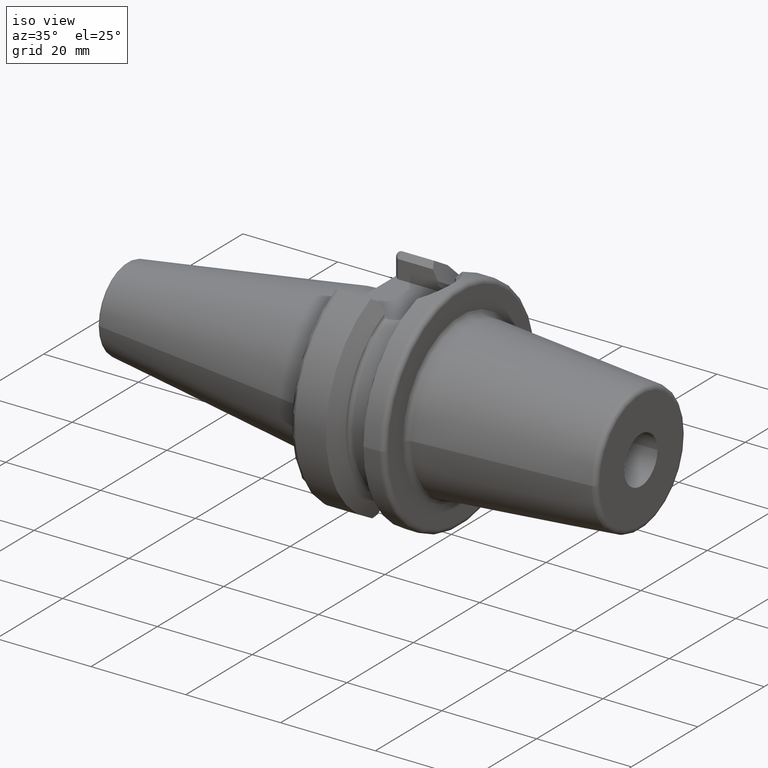
[diagram: clean part render]
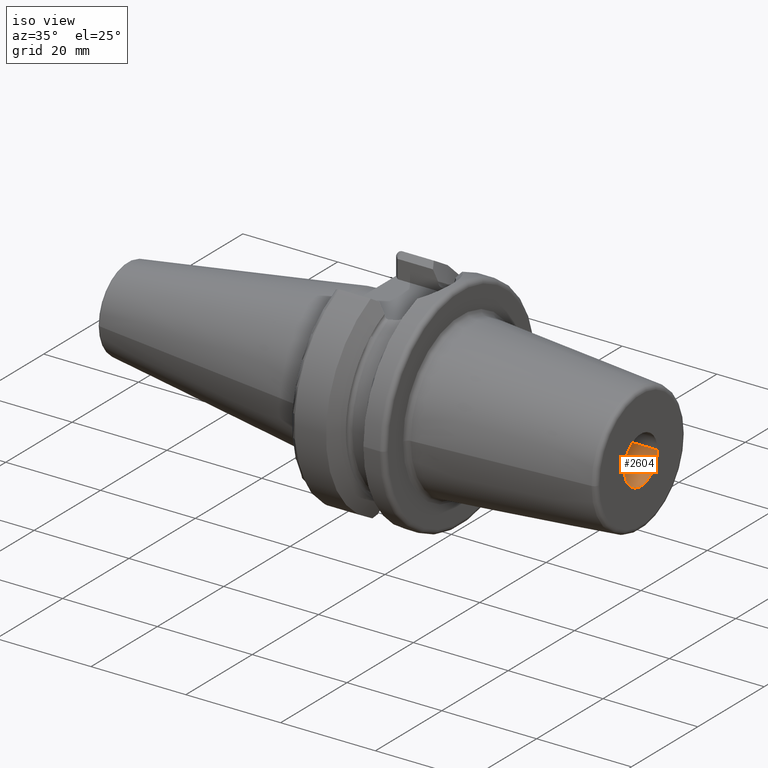
[diagram: same view with one face highlighted and labeled with its STEP entity id]
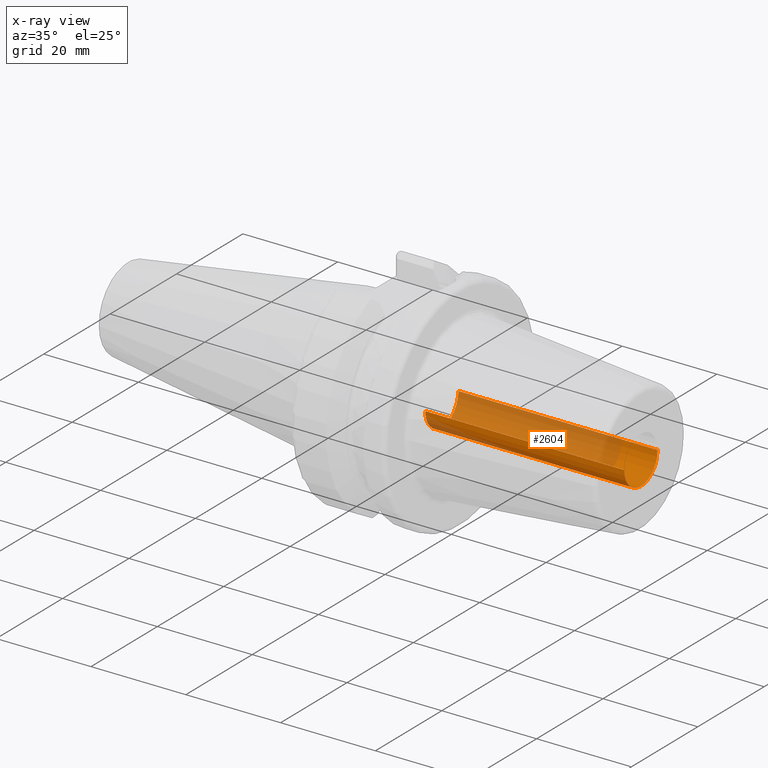
[diagram: x-ray of the same camera — body ghosted, the highlighted face saturated]
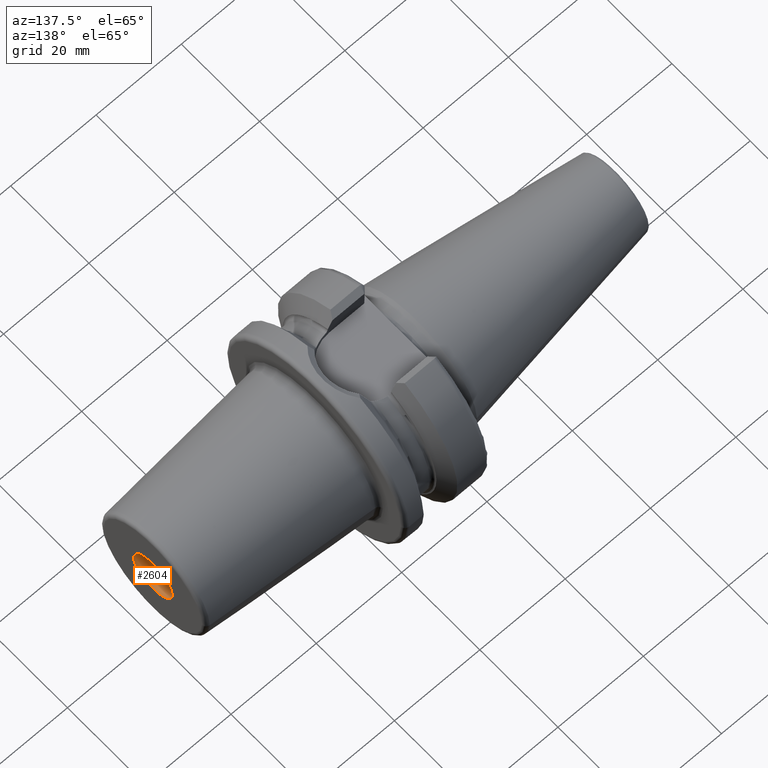
[diagram: same view with one face highlighted and labeled with its STEP entity id]
A machine part, iso view. The second image highlights one B-rep face of the part: STEP entity #2604.
The next image is the same camera in x-ray: the body ghosted, the highlighted face saturated — about 58% of this face is hidden behind the body in this view.
A second angle (auxiliary view) of the same face is appended — the face is thin or edge-on in the first view.
In plain terms, the highlighted cylindrical surface (edge-blend (fillet) strip) has radius 5 mm, axis along (-1, 0, 0).
Its self-contained STEP definition (entity closure, byte-faithful):
#885=CARTESIAN_POINT('',(6.E1,0.E0,0.E0));
#886=DIRECTION('',(-1.E0,0.E0,0.E0));
#887=DIRECTION('',(0.E0,1.E0,0.E0));
#888=AXIS2_PLACEMENT_3D('',#885,#886,#887);
#900=DIRECTION('',(-1.E0,0.E0,0.E0));
#901=VECTOR('',#900,4.2E1);
#902=CARTESIAN_POINT('',(6.E1,-5.E0,0.E0));
#903=LINE('',#902,#901);
#904=DIRECTION('',(-1.E0,0.E0,0.E0));
#905=VECTOR('',#904,4.2E1);
#906=CARTESIAN_POINT('',(6.E1,5.E0,0.E0));
#907=LINE('',#906,#905);
#913=CARTESIAN_POINT('',(1.8E1,0.E0,0.E0));
#914=DIRECTION('',(-1.E0,0.E0,0.E0));
#915=DIRECTION('',(0.E0,1.E0,0.E0));
#916=AXIS2_PLACEMENT_3D('',#913,#914,#915);
#1357=CARTESIAN_POINT('',(1.8E1,-5.E0,0.E0));
#1358=CARTESIAN_POINT('',(1.8E1,5.E0,0.E0));
#1359=VERTEX_POINT('',#1357);
#1360=VERTEX_POINT('',#1358);
#1361=CARTESIAN_POINT('',(6.E1,-5.E0,0.E0));
#1362=CARTESIAN_POINT('',(6.E1,5.E0,0.E0));
#1363=VERTEX_POINT('',#1361);
#1364=VERTEX_POINT('',#1362);
#2592=CARTESIAN_POINT('',(6.E1,0.E0,0.E0));
#2593=DIRECTION('',(-1.E0,0.E0,0.E0));
#2594=DIRECTION('',(0.E0,-1.E0,0.E0));
#2595=AXIS2_PLACEMENT_3D('',#2592,#2593,#2594);
#2596=CYLINDRICAL_SURFACE('',#2595,5.E0);
#2597=ORIENTED_EDGE('',*,*,#2572,.T.);
#2598=ORIENTED_EDGE('',*,*,#2587,.T.);
#2600=ORIENTED_EDGE('',*,*,#2599,.F.);
#2601=ORIENTED_EDGE('',*,*,#2583,.F.);
#2602=EDGE_LOOP('',(#2597,#2598,#2600,#2601));
#2603=FACE_OUTER_BOUND('',#2602,.F.);
#2604=ADVANCED_FACE('',(#2603),#2596,.F.);
#889=CIRCLE('',#888,5.E0);
#917=CIRCLE('',#916,5.E0);
#2572=EDGE_CURVE('',#1364,#1363,#889,.T.);
#2583=EDGE_CURVE('',#1364,#1360,#907,.T.);
#2587=EDGE_CURVE('',#1363,#1359,#903,.T.);
#2599=EDGE_CURVE('',#1360,#1359,#917,.T.);